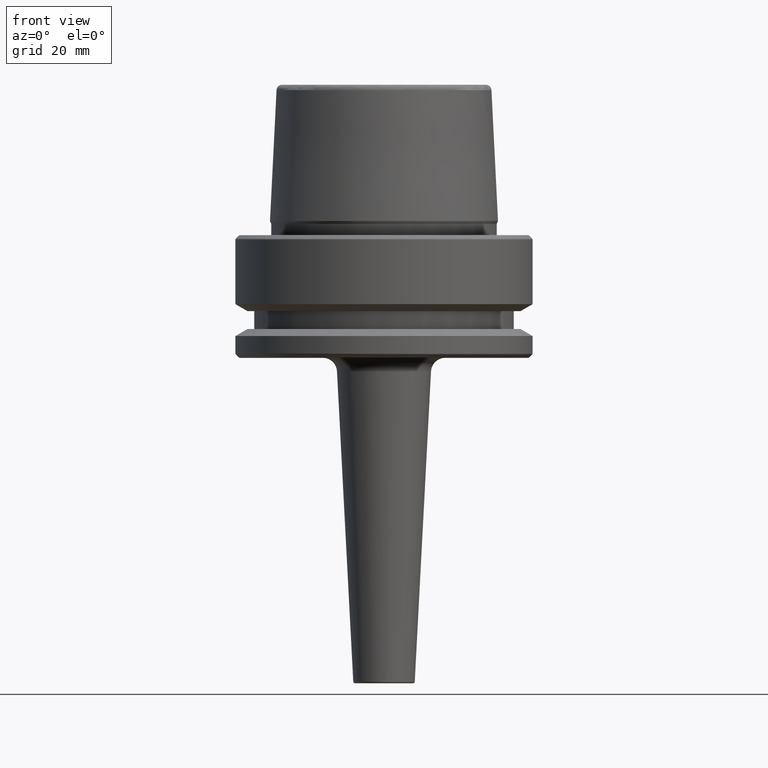
[diagram: clean part render]
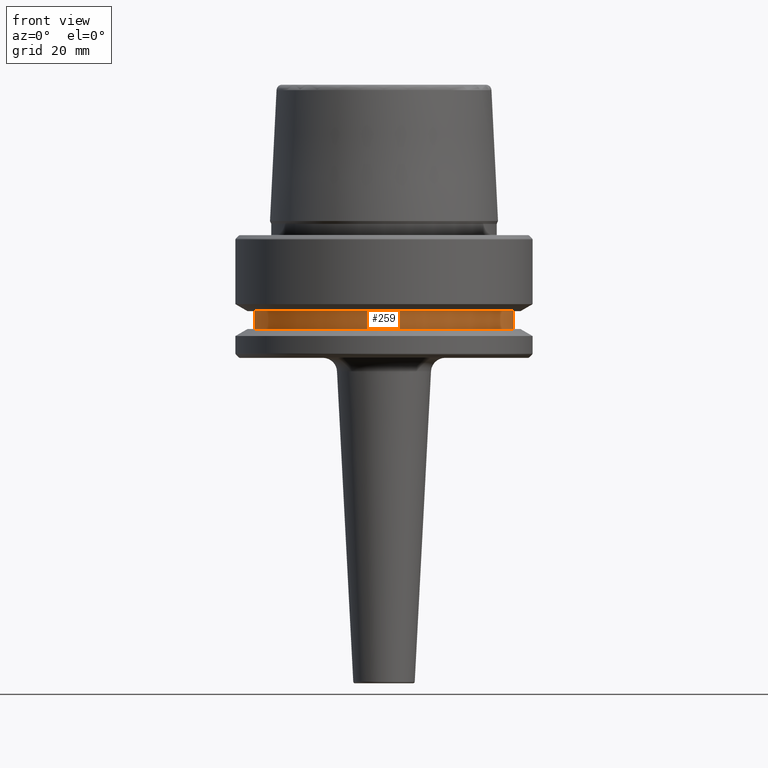
[diagram: same view with one face highlighted and labeled with its STEP entity id]
A machine part, front view. The second image highlights one B-rep face of the part: STEP entity #259.
In plain terms, the highlighted cylindrical surface (partial cylindrical patch) has radius 27.5 mm, axis along (-0, -0, 1).
Its self-contained STEP definition (entity closure, byte-faithful):
#7 = CARTESIAN_POINT ( 'NONE',  ( -27.49999999999999600, 3.367778697655220900E-015, -19.90000000000001600 ) ) ;
#19 = ORIENTED_EDGE ( 'NONE', *, *, #589, .T. ) ;
#26 = CARTESIAN_POINT ( 'NONE',  ( 0.0000000000000000000, 0.0000000000000000000, 78.96908074195309300 ) ) ;
#44 = DIRECTION ( 'NONE',  ( 1.000000000000000000, 0.0000000000000000000, 0.0000000000000000000 ) ) ;
#47 = CARTESIAN_POINT ( 'NONE',  ( 27.49999999999999600, 0.0000000000000000000, -16.10000000000001600 ) ) ;
#83 = DIRECTION ( 'NONE',  ( -0.0000000000000000000, -0.0000000000000000000, 1.000000000000000000 ) ) ;
#145 = CARTESIAN_POINT ( 'NONE',  ( -27.49999999999999600, 3.367778697655220900E-015, -16.10000000000001600 ) ) ;
#166 = CYLINDRICAL_SURFACE ( 'NONE', #370, 27.49999999999999600 ) ;
#183 = CIRCLE ( 'NONE', #261, 27.49999999999999600 ) ;
#211 = EDGE_LOOP ( 'NONE', ( #745, #19, #585, #889 ) ) ;
#237 = CARTESIAN_POINT ( 'NONE',  ( 27.49999999999999600, 0.0000000000000000000, 78.96908074195309300 ) ) ;
#242 = EDGE_CURVE ( 'NONE', #1123, #710, #718, .T. ) ;
#247 = LINE ( 'NONE', #237, #607 ) ;
#259 = ADVANCED_FACE ( 'NONE', ( #305 ), #166, .T. ) ;
#261 = AXIS2_PLACEMENT_3D ( 'NONE', #1225, #83, #375 ) ;
#301 = EDGE_CURVE ( 'NONE', #795, #440, #247, .T. ) ;
#305 = FACE_OUTER_BOUND ( 'NONE', #211, .T. ) ;
#321 = DIRECTION ( 'NONE',  ( -0.0000000000000000000, -0.0000000000000000000, 1.000000000000000000 ) ) ;
#347 = CARTESIAN_POINT ( 'NONE',  ( 0.0000000000000000000, 0.0000000000000000000, -16.10000000000001600 ) ) ;
#370 = AXIS2_PLACEMENT_3D ( 'NONE', #26, #321, #502 ) ;
#375 = DIRECTION ( 'NONE',  ( 1.000000000000000000, 0.0000000000000000000, 0.0000000000000000000 ) ) ;
#440 = VERTEX_POINT ( 'NONE', #47 ) ;
#502 = DIRECTION ( 'NONE',  ( 1.000000000000000000, 0.0000000000000000000, 0.0000000000000000000 ) ) ;
#585 = ORIENTED_EDGE ( 'NONE', *, *, #301, .T. ) ;
#589 = EDGE_CURVE ( 'NONE', #1123, #795, #183, .T. ) ;
#607 = VECTOR ( 'NONE', #792, 1000.000000000000000 ) ;
#629 = CARTESIAN_POINT ( 'NONE',  ( 27.49999999999999600, 0.0000000000000000000, -19.90000000000001600 ) ) ;
#690 = AXIS2_PLACEMENT_3D ( 'NONE', #347, #703, #44 ) ;
#703 = DIRECTION ( 'NONE',  ( -0.0000000000000000000, -0.0000000000000000000, 1.000000000000000000 ) ) ;
#710 = VERTEX_POINT ( 'NONE', #145 ) ;
#718 = LINE ( 'NONE', #902, #774 ) ;
#745 = ORIENTED_EDGE ( 'NONE', *, *, #242, .F. ) ;
#774 = VECTOR ( 'NONE', #1070, 1000.000000000000000 ) ;
#792 = DIRECTION ( 'NONE',  ( -0.0000000000000000000, -0.0000000000000000000, 1.000000000000000000 ) ) ;
#795 = VERTEX_POINT ( 'NONE', #629 ) ;
#814 = CIRCLE ( 'NONE', #690, 27.49999999999999600 ) ;
#857 = EDGE_CURVE ( 'NONE', #710, #440, #814, .T. ) ;
#889 = ORIENTED_EDGE ( 'NONE', *, *, #857, .F. ) ;
#902 = CARTESIAN_POINT ( 'NONE',  ( -27.49999999999999600, 3.367778697655220900E-015, 78.96908074195309300 ) ) ;
#1070 = DIRECTION ( 'NONE',  ( -0.0000000000000000000, -0.0000000000000000000, 1.000000000000000000 ) ) ;
#1123 = VERTEX_POINT ( 'NONE', #7 ) ;
#1225 = CARTESIAN_POINT ( 'NONE',  ( 0.0000000000000000000, 0.0000000000000000000, -19.90000000000001600 ) ) ;